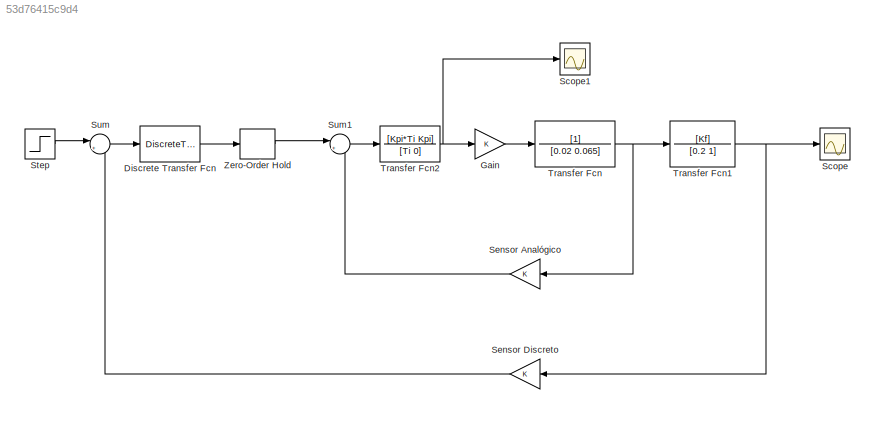
MODEL slx_53d76415c9d4
KIND model
CONFIG AbsTol = auto
CONFIG FixedStep = auto
CONFIG MaxStep = auto
CONFIG MinStep = auto
CONFIG RelTol = 1e-3
CONFIG SampleTimeConstraint = Unconstrained
CONFIG Solver = ode45
CONFIG SolverMode = Auto
CONFIG SolverName = ode45
CONFIG StartTime = 0.0
CONFIG StopTime = 100
BLOCK [DiscreteTransferFcn] Discrete Transfer Fcn
  Denominator = [1]
  InputPortMap = u0
  Numerator = [3.6488]
  Ports = [1, 1]
  SampleTime = T
BLOCK [Gain] Gain
  OutDataTypeStr = Inherit: Inherit via internal rule
  ParamDataTypeStr = Inherit: Inherit via internal rule
  SaturateOnIntegerOverflow = off
BLOCK [Scope] Scope
  Ports = [1]
  ScopeSpecificationString = Simulink.scopes.TimeScopeBlockCfg('CurrentConfiguration', extmgr.ConfigurationSet(extmgr.Configuration('Core','General UI',true),extmgr.Configuration('Core','Source UI',true),extmgr.Configuration('Sources','WiredSimulink',true,'DataLoggingSaveFormat','StructureWithTime','DataLoggingLimitDataPoints',true,'DataLoggingDecimation','1','DataLoggingDecimateData',true),extmgr.Configuration('Visuals','Tim...<+1646ch>
BLOCK [Scope] Scope1
  Ports = [1]
  ScopeSpecificationString = C++SS(StrPVP('SaveName','ScopeData1'),StrPVP('LimitDataPoints','on'),StrPVP('DataFormat','Array'),StrPVP('Decimation','1'),StrPVP('BlockParamSampleInput','off'))
BLOCK [Gain] Sensor Analógico
  OutDataTypeStr = Inherit: Inherit via internal rule
  ParamDataTypeStr = Inherit: Inherit via internal rule
  SaturateOnIntegerOverflow = off
BLOCK [Gain] Sensor Discreto
  OutDataTypeStr = Inherit: Inherit via internal rule
  ParamDataTypeStr = Inherit: Inherit via internal rule
  SaturateOnIntegerOverflow = off
BLOCK [Step] Step
  SampleTime = 0
BLOCK [Sum] Sum
  IconShape = round
  InputSameDT = off
  Inputs = |+-
  OutDataTypeStr = Inherit: Inherit via internal rule
  Ports = [2, 1]
  SaturateOnIntegerOverflow = off
BLOCK [Sum] Sum1
  IconShape = round
  InputSameDT = off
  Inputs = |+-
  OutDataTypeStr = Inherit: Inherit via internal rule
  Ports = [2, 1]
  SaturateOnIntegerOverflow = off
BLOCK [TransferFcn] Transfer Fcn
  Denominator = [0.02 0.065]
BLOCK [TransferFcn] Transfer Fcn1
  Denominator = [0.2 1]
  Numerator = [Kf]
BLOCK [TransferFcn] Transfer Fcn2
  Denominator = [Ti 0]
  Numerator = [Kpi*Ti Kpi]
BLOCK [ZeroOrderHold] Zero-Order Hold
  SampleTime = T
LINE Discrete Transfer Fcn:1 -> Zero-Order Hold:1
LINE Gain:1 -> Transfer Fcn:1
LINE Sensor Analógico:1 -> Sum1:2
LINE Sensor Discreto:1 -> Sum:2
LINE Step:1 -> Sum:1
LINE Sum1:1 -> Transfer Fcn2:1
LINE Sum:1 -> Discrete Transfer Fcn:1
NET Transfer Fcn1:1 -> Scope:1, Sensor Discreto:1
NET Transfer Fcn2:1 -> Gain:1, Scope1:1
NET Transfer Fcn:1 -> Sensor Analógico:1, Transfer Fcn1:1
LINE Zero-Order Hold:1 -> Sum1:1
note: NET lines group one-source signal fan-out (src -> all destinations, sorted); 1:1 wires keep LINE
